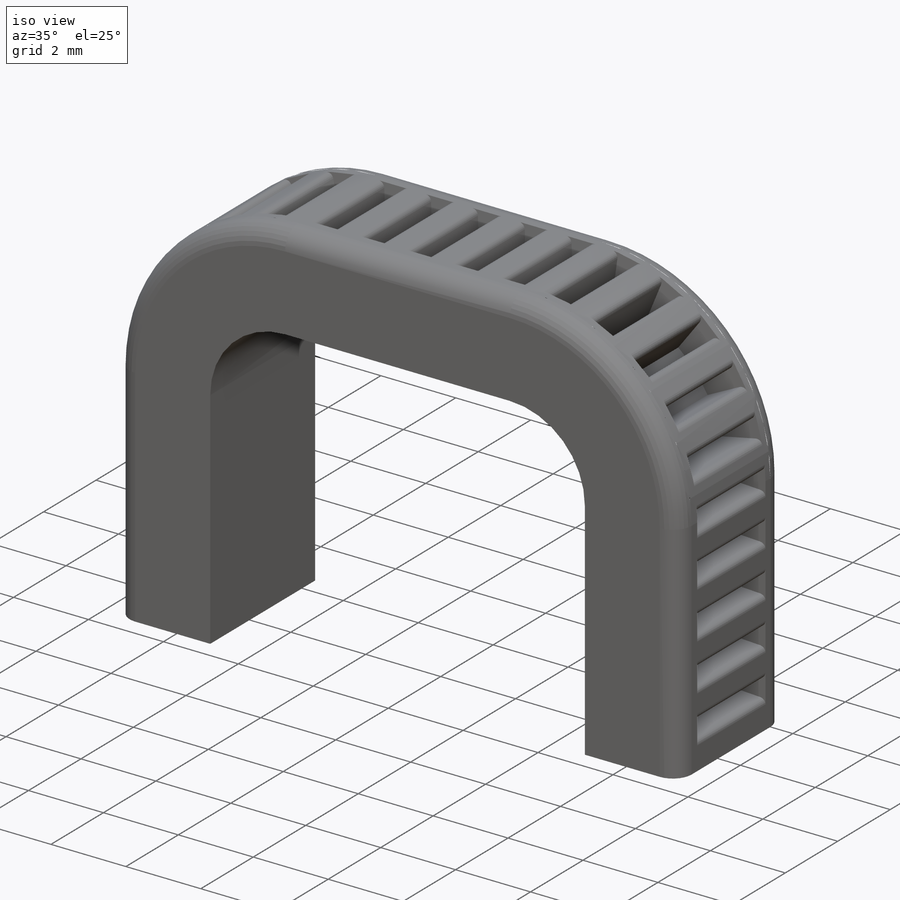
[diagram: iso view]
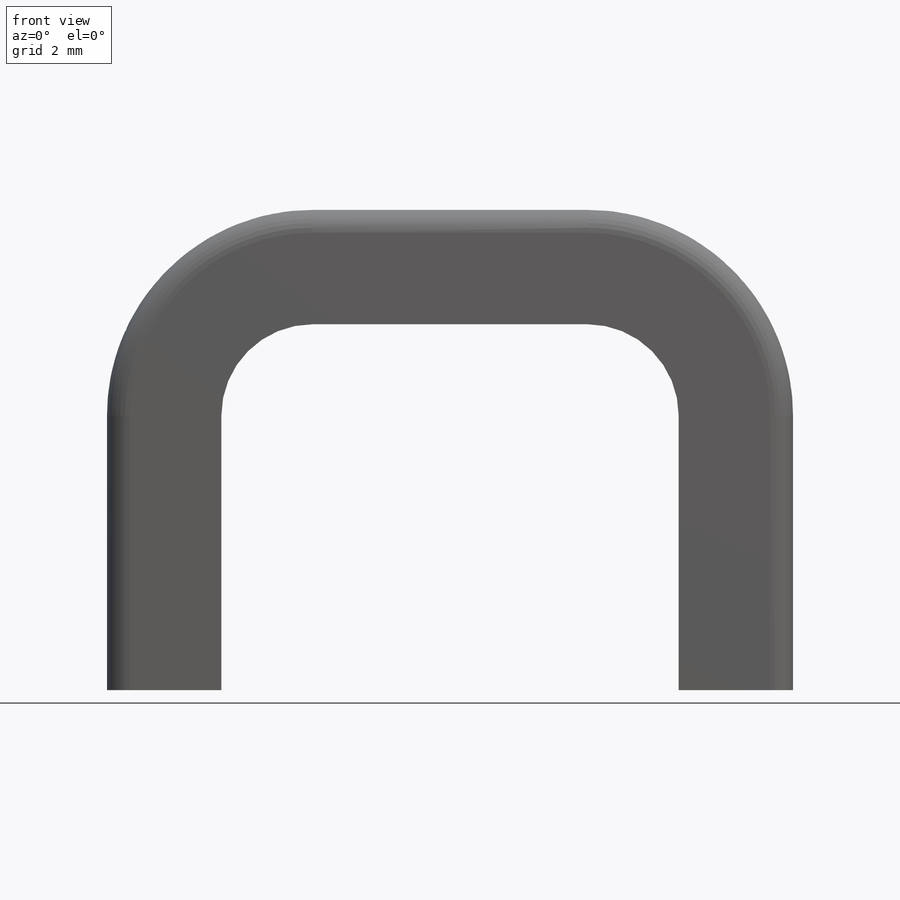
[diagram: front view]
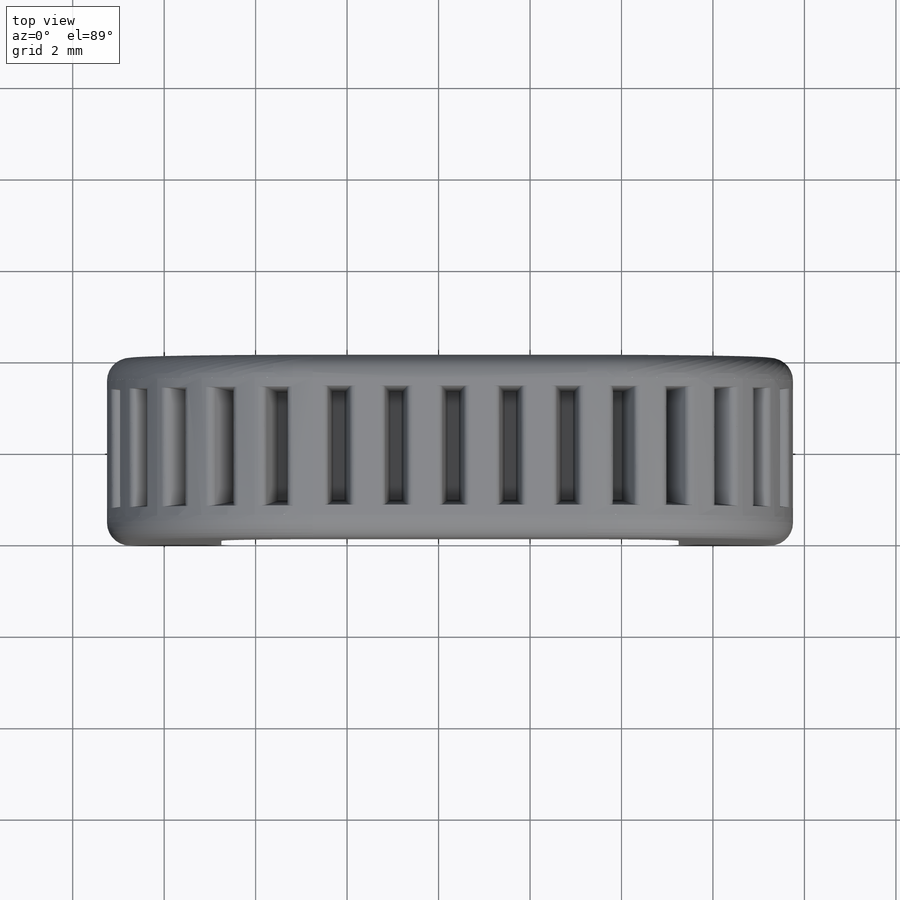
[diagram: top view]
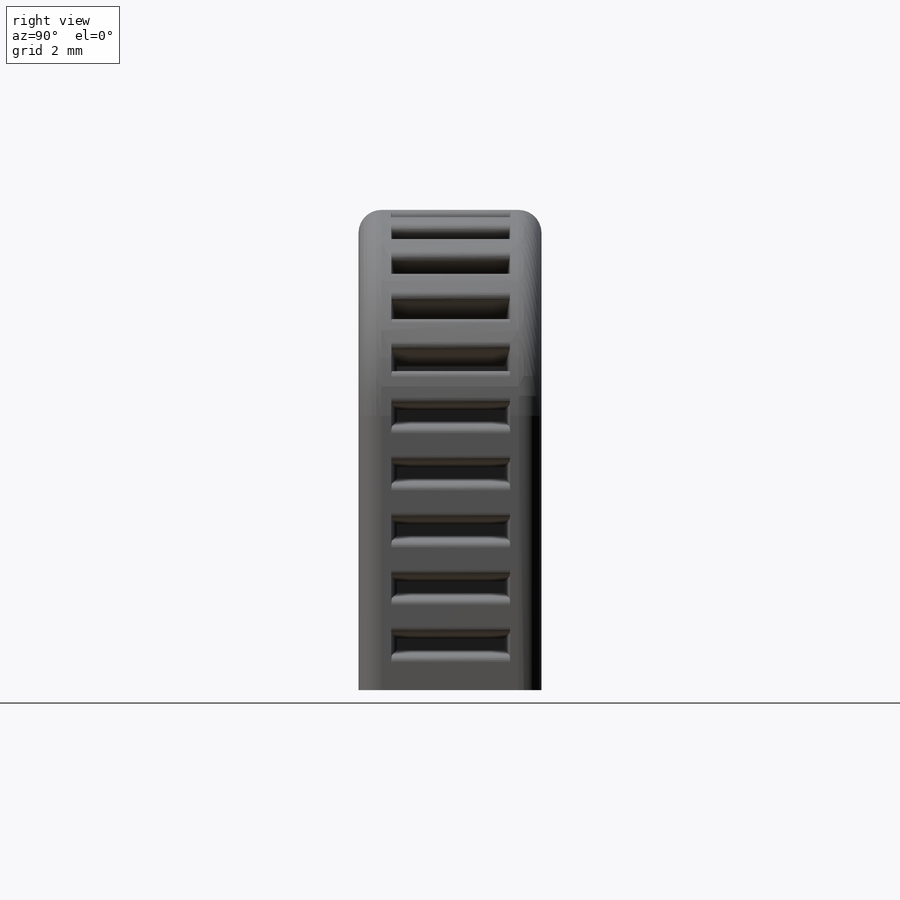
[diagram: right view]
SOLIDWORKS PART (.sldprt)
format: sldprt  version: not decoded by parser v0  size: 763,392 bytes
history: native  units: mm
features: fillet x50, sketch x5, cut_extrude x2, material x1, sweep x1 (+17 scaffold rows collapsed; 1 parser-record rows omitted)
feature tree (77):
  scaffold x17  (default folders/planes/origin — collapsed)
  material  "Nylon 101"
  sketch  "Sketch1"  dims[D1=1.25mm]
  sketch  "Sketch2"  dims[D1=9.25mm]
  sweep  "Sweep1"
  sketch  "3DSketch6"
  sketch  "Sketch3"  dims[D1=0.5mm]
  cut_extrude  "Extrude1"  Depth=1mm
  fillet  "Fillet2"  Radius=0.15mm
  fillet  "Fillet3"  Radius=0.15mm
  sketch  "Sketch4"  dims[D1=0.75mm]
  cut_extrude  "Extrude2"  Depth=1mm
  parser-record x1  (decoder bookkeeping rows leaked as tree rows — omitted from the tree; the rows remain in map.json)
  fillet  "Fillet4"  Radius=0.15mm
  fillet  "Fillet5"  Radius=0.15mm
  fillet  "Fillet6"  Radius=0.15mm
  fillet  "Fillet7"  Radius=0.15mm
  fillet  "Fillet8"  Radius=0.15mm
  fillet  "Fillet9"  Radius=0.15mm
  fillet  "Fillet10"  Radius=0.15mm
  fillet  "Fillet11"  Radius=0.15mm
  fillet  "Fillet12"  Radius=0.15mm
  fillet  "Fillet13"  Radius=0.15mm
  fillet  "Fillet14"  Radius=0.15mm
  fillet  "Fillet15"  Radius=0.15mm
  fillet  "Fillet16"  Radius=0.15mm
  fillet  "Fillet17"  Radius=0.15mm
  fillet  "Fillet18"  Radius=0.15mm
  fillet  "Fillet19"  Radius=0.15mm
  fillet  "Fillet20"  Radius=0.15mm
  fillet  "Fillet21"  Radius=0.15mm
  fillet  "Fillet22"  Radius=0.15mm
  fillet  "Fillet23"  Radius=0.15mm
  fillet  "Fillet24"  Radius=0.15mm
  fillet  "Fillet25"  Radius=0.15mm
  fillet  "Fillet26"  Radius=0.15mm
  fillet  "Fillet27"  Radius=0.15mm
  fillet  "Fillet28"  Radius=0.15mm
  fillet  "Fillet29"  Radius=0.15mm
  fillet  "Fillet30"  Radius=0.15mm
  fillet  "Fillet31"  Radius=0.15mm
  fillet  "Fillet32"  Radius=0.15mm
  fillet  "Fillet33"  Radius=0.15mm
  fillet  "Fillet34"  Radius=0.15mm
  fillet  "Fillet35"  Radius=0.15mm
  fillet  "Fillet36"  Radius=0.15mm
  fillet  "Fillet37"  Radius=0.15mm
  fillet  "Fillet38"  Radius=0.15mm
  fillet  "Fillet39"  Radius=0.15mm
  fillet  "Fillet40"  Radius=0.15mm
  fillet  "Fillet41"  Radius=0.15mm
  fillet  "Fillet42"  Radius=0.15mm
  fillet  "Fillet43"  Radius=0.15mm
  fillet  "Fillet44"  Radius=0.15mm
  fillet  "Fillet45"  Radius=0.15mm
  fillet  "Fillet46"  Radius=0.15mm
  fillet  "Fillet47"  Radius=0.15mm
  fillet  "Fillet48"  Radius=0.15mm
  fillet  "Fillet49"  Radius=0.15mm
  fillet  "Fillet50"  Radius=0.15mm
  fillet  "Fillet51"  Radius=0.15mm
decode coverage: 56 of 58 modeling features carry decoded parameters
note: suppression state not decoded; provenance and decode notes live in map.json
